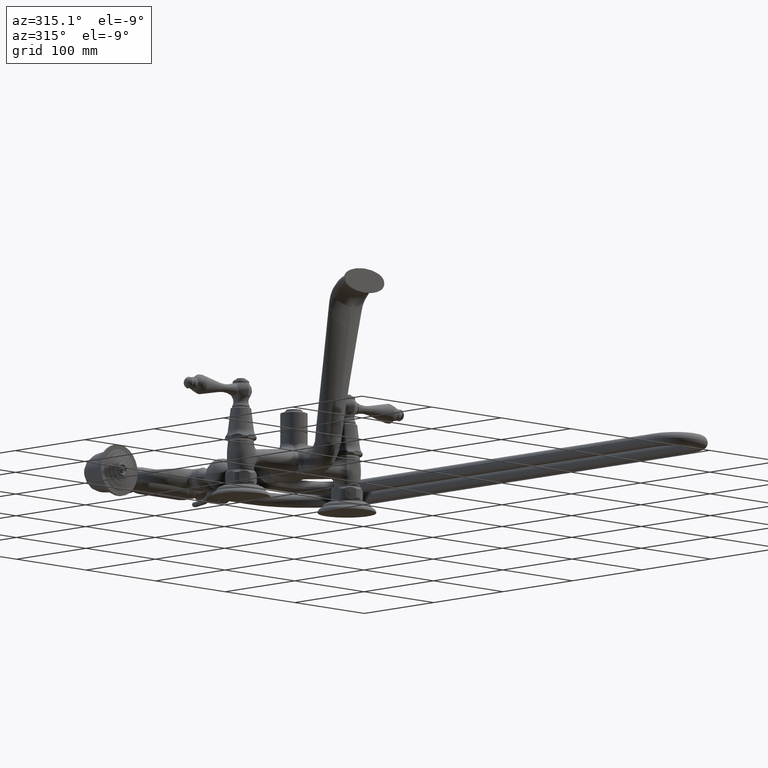
[diagram: clean part render]
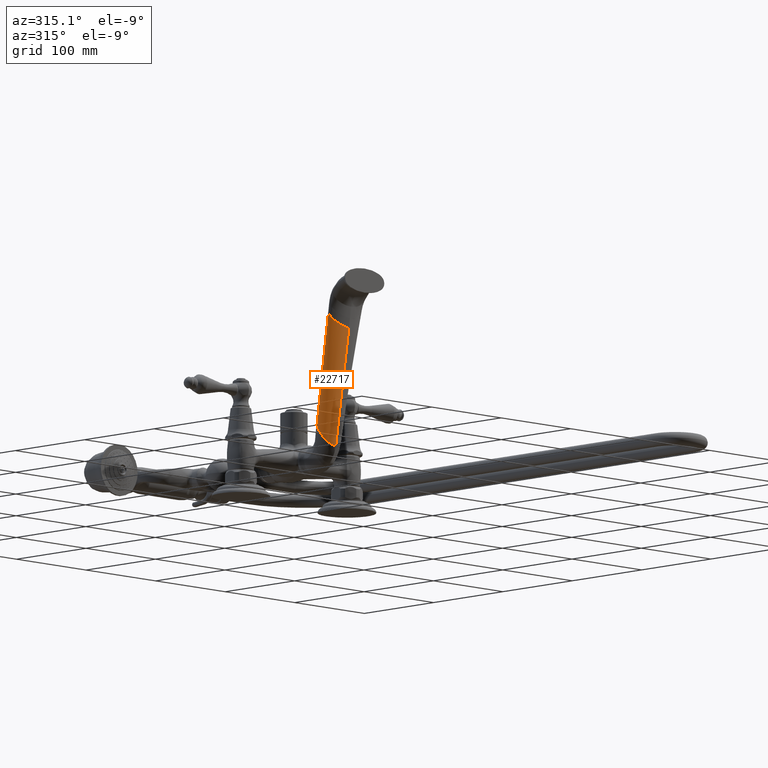
[diagram: same view with one face highlighted and labeled with its STEP entity id]
A machine part, auxiliary view. The second image highlights one B-rep face of the part: STEP entity #22717.
In plain terms, the highlighted face is a freeform B-spline surface patch.
Its self-contained STEP definition (entity closure, byte-faithful):
#962=DIRECTION('',(-5.522472671749E-2,-1.978964518435E-1,9.786660430948E-1));
#963=VECTOR('',#962,4.564261573249E0);
#964=CARTESIAN_POINT('',(-6.424156534630E-1,-1.957098222542E0,
1.283315377825E0));
#965=LINE('',#964,#963);
#988=DIRECTION('',(0.E0,-1.564344650402E-1,9.876883405951E-1));
#989=VECTOR('',#988,4.740099170455E0);
#990=CARTESIAN_POINT('',(0.E0,-2.375949008421E0,4.844569186997E-1));
#991=LINE('',#990,#989);
#1006=CARTESIAN_POINT('',(-8.944757515128E-1,-2.860349393174E0,
5.750203191366E0));
#1007=CARTESIAN_POINT('',(-8.945821306863E-1,-2.863645216828E0,
5.735630898210E0));
#1008=CARTESIAN_POINT('',(-8.913417888232E-1,-2.870346561974E0,
5.709825471475E0));
#1009=CARTESIAN_POINT('',(-8.780906276309E-1,-2.884132433152E0,
5.664548542467E0));
#1010=CARTESIAN_POINT('',(-8.532922237936E-1,-2.901978966669E0,
5.615404314537E0));
#1011=CARTESIAN_POINT('',(-8.160320824948E-1,-2.924043855382E0,
5.562796524462E0));
#1012=CARTESIAN_POINT('',(-7.588643653375E-1,-2.953884221288E0,
5.498778311683E0));
#1013=CARTESIAN_POINT('',(-6.762435119024E-1,-2.991138986019E0,
5.427651105434E0));
#1014=CARTESIAN_POINT('',(-5.634577488545E-1,-3.033102293243E0,
5.353425939330E0));
#1015=CARTESIAN_POINT('',(-4.387912793367E-1,-3.069653887797E0,
5.289680000255E0));
#1016=CARTESIAN_POINT('',(-2.581648552657E-1,-3.107614660693E0,
5.218703611068E0));
#1017=CARTESIAN_POINT('',(-1.074435132833E-1,-3.119959764720E0,
5.181955958217E0));
#1018=CARTESIAN_POINT('',(0.E0,-3.117463886389E0,5.166197602623E0));
#1020=CARTESIAN_POINT('',(-6.424156534630E-1,-1.957098222542E0,
1.283315377825E0));
#1021=CARTESIAN_POINT('',(-6.430098444355E-1,-1.961154842044E0,
1.270118292902E0));
#1022=CARTESIAN_POINT('',(-6.429000615532E-1,-1.969579071551E0,
1.244560258558E0));
#1023=CARTESIAN_POINT('',(-6.396346320449E-1,-1.987562052614E0,
1.194752730223E0));
#1024=CARTESIAN_POINT('',(-6.311675998175E-1,-2.011962807847E0,
1.133828822375E0));
#1025=CARTESIAN_POINT('',(-6.155780906234E-1,-2.043662320578E0,
1.061934378520E0));
#1026=CARTESIAN_POINT('',(-5.881109276105E-1,-2.088277626431E0,
9.680228554873E-1));
#1027=CARTESIAN_POINT('',(-5.417278241923E-1,-2.146810075908E0,
8.554693563214E-1));
#1028=CARTESIAN_POINT('',(-4.678587633568E-1,-2.216217204381E0,
7.330972430499E-1));
#1029=CARTESIAN_POINT('',(-3.760910306351E-1,-2.279539403601E0,
6.291304916958E-1));
#1030=CARTESIAN_POINT('',(-2.311118116351E-1,-2.348851605751E0,
5.218379066855E-1));
#1031=CARTESIAN_POINT('',(-9.812080477089E-2,-2.375949008421E0,
4.844569186997E-1));
#1032=CARTESIAN_POINT('',(0.E0,-2.375949008421E0,4.844569186997E-1));
#1040=CARTESIAN_POINT('',(0.E0,-2.375949008421E0,4.844569186997E-1));
#18687=CARTESIAN_POINT('',(-6.424156534630E-1,-1.957098222542E0,
1.283315377825E0));
#18688=VERTEX_POINT('',#18687);
#18689=CARTESIAN_POINT('',(-8.944757515128E-1,-2.860349393174E0,
5.750203191366E0));
#18690=VERTEX_POINT('',#18689);
#18708=VERTEX_POINT('',#1040);
#18709=CARTESIAN_POINT('',(0.E0,-3.117463886389E0,5.166197602623E0));
#18710=VERTEX_POINT('',#18709);
#22617=CARTESIAN_POINT('',(-6.424156534630E-1,-1.957098222542E0,
1.283315377825E0));
#22618=CARTESIAN_POINT('',(-6.430098444355E-1,-1.961154842044E0,
1.270118292902E0));
#22619=CARTESIAN_POINT('',(-6.429000615532E-1,-1.969579071551E0,
1.244560258558E0));
#22620=CARTESIAN_POINT('',(-6.396346320449E-1,-1.987562052614E0,
1.194752730223E0));
#22621=CARTESIAN_POINT('',(-6.311675998175E-1,-2.011962807847E0,
1.133828822375E0));
#22622=CARTESIAN_POINT('',(-6.155780906234E-1,-2.043662320578E0,
1.061934378520E0));
#22623=CARTESIAN_POINT('',(-5.881109276105E-1,-2.088277626431E0,
9.680228554873E-1));
#22624=CARTESIAN_POINT('',(-5.417278241923E-1,-2.146810075908E0,
8.554693563214E-1));
#22625=CARTESIAN_POINT('',(-4.678587633568E-1,-2.216217204381E0,
7.330972430499E-1));
#22626=CARTESIAN_POINT('',(-3.760910306351E-1,-2.279539403601E0,
6.291304916958E-1));
#22627=CARTESIAN_POINT('',(-2.311118116351E-1,-2.348851605751E0,
5.218379066855E-1));
#22628=CARTESIAN_POINT('',(-9.812080477089E-2,-2.375949008421E0,
4.844569186997E-1));
#22629=CARTESIAN_POINT('',(0.E0,-2.375949008421E0,4.844569186997E-1));
#22630=CARTESIAN_POINT('',(-6.634206616338E-1,-2.032369153428E0,
1.655556028953E0));
#22631=CARTESIAN_POINT('',(-6.639652727362E-1,-2.036395318852E0,
1.642450761986E0));
#22632=CARTESIAN_POINT('',(-6.635747837977E-1,-2.044745643706E0,
1.617309000500E0));
#22633=CARTESIAN_POINT('',(-6.594306316390E-1,-2.062531126391E0,
1.568835149030E0));
#22634=CARTESIAN_POINT('',(-6.495332188750E-1,-2.086596148371E0,
1.510216462045E0));
#22635=CARTESIAN_POINT('',(-6.320422526832E-1,-2.117764386275E0,
1.441639868196E0));
#22636=CARTESIAN_POINT('',(-6.019638594333E-1,-2.161518507826E0,
1.352552543593E0));
#22637=CARTESIAN_POINT('',(-5.523885069325E-1,-2.218722397240E0,
1.246257707897E0));
#22638=CARTESIAN_POINT('',(-4.751114088795E-1,-2.286242178343E0,
1.130424634536E0));
#22639=CARTESIAN_POINT('',(-3.805245568667E-1,-2.347494207098E0,
1.030830289387E0));
#22640=CARTESIAN_POINT('',(-2.326485221479E-1,-2.413949420771E0,
9.250299199996E-1));
#22641=CARTESIAN_POINT('',(-9.850288393030E-2,-2.438960604044E0,
8.822964760067E-1));
#22642=CARTESIAN_POINT('',(0.E0,-2.437741914918E0,8.746019756933E-1));
#22643=CARTESIAN_POINT('',(-7.054306779754E-1,-2.182911015200E0,
2.400037331210E0));
#22644=CARTESIAN_POINT('',(-7.058339191518E-1,-2.186851148167E0,
2.386955429019E0));
#22645=CARTESIAN_POINT('',(-7.047928393659E-1,-2.194999923364E0,
2.362303830260E0));
#22646=CARTESIAN_POINT('',(-6.986966246708E-1,-2.212270859853E0,
2.315737150297E0));
#22647=CARTESIAN_POINT('',(-6.856698928917E-1,-2.235495908871E0,
2.260659671717E0));
#22648=CARTESIAN_POINT('',(-6.640299270639E-1,-2.265380267465E0,
2.197316968765E0));
#22649=CARTESIAN_POINT('',(-6.282580605058E-1,-2.307106604381E0,
2.115946229693E0));
#22650=CARTESIAN_POINT('',(-5.717331141457E-1,-2.361280746561E0,
2.019815532677E0));
#22651=CARTESIAN_POINT('',(-4.871328363819E-1,-2.424684425404E0,
1.914908672609E0));
#22652=CARTESIAN_POINT('',(-3.867047870675E-1,-2.481651567041E0,
1.823152670678E0));
#22653=CARTESIAN_POINT('',(-2.333475540258E-1,-2.542584045707E0,
1.721553220655E0));
#22654=CARTESIAN_POINT('',(-9.798260876895E-2,-2.564134862603E0,
1.672615640582E0));
#22655=CARTESIAN_POINT('',(0.E0,-2.561327727913E0,1.654892089681E0));
#22656=CARTESIAN_POINT('',(-7.684457024879E-1,-2.408723807858E0,
3.516759284596E0));
#22657=CARTESIAN_POINT('',(-7.687015180973E-1,-2.412479738183E0,
3.503364376161E0));
#22658=CARTESIAN_POINT('',(-7.668232252926E-1,-2.420209024146E0,
3.478708600483E0));
#22659=CARTESIAN_POINT('',(-7.581088765018E-1,-2.436450248508E0,
3.433374979287E0));
#22660=CARTESIAN_POINT('',(-7.408273057924E-1,-2.458056035744E0,
3.381341334932E0));
#22661=CARTESIAN_POINT('',(-7.135432405849E-1,-2.485547498384E0,
3.322900927800E0));
#22662=CARTESIAN_POINT('',(-6.700332457587E-1,-2.523592415315E0,
3.249066260306E0));
#22663=CARTESIAN_POINT('',(-6.040662353037E-1,-2.572448391876E0,
3.163297856525E0));
#22664=CARTESIAN_POINT('',(-5.093853683959E-1,-2.628976949197E0,
3.070354184099E0));
#22665=CARTESIAN_POINT('',(-4.005829210093E-1,-2.679228548775E0,
2.988535345789E0));
#22666=CARTESIAN_POINT('',(-2.385084830250E-1,-2.732290280302E0,
2.895846135548E0));
#22667=CARTESIAN_POINT('',(-9.944133500739E-2,-2.750136112764E0,
2.846981315519E0));
#22668=CARTESIAN_POINT('',(0.E0,-2.746706447405E0,2.825327260661E0));
#22669=CARTESIAN_POINT('',(-8.314607270004E-1,-2.634536600516E0,
4.633481237981E0));
#22670=CARTESIAN_POINT('',(-8.316323228340E-1,-2.638072422638E0,
4.619551902092E0));
#22671=CARTESIAN_POINT('',(-8.290522474727E-1,-2.645307048513E0,
4.594427234852E0));
#22672=CARTESIAN_POINT('',(-8.180218375639E-1,-2.660356881539E0,
4.549323145906E0));
#22673=CARTESIAN_POINT('',(-7.969124227480E-1,-2.680123990371E0,
4.498965104643E0));
#22674=CARTESIAN_POINT('',(-7.645465169183E-1,-2.704944157549E0,
4.443683349043E0));
#22675=CARTESIAN_POINT('',(-7.140756510681E-1,-2.738933133895E0,
4.375031337977E0));
#22676=CARTESIAN_POINT('',(-6.396169065270E-1,-2.782028088281E0,
4.296830790427E0));
#22677=CARTESIAN_POINT('',(-5.357284136623E-1,-2.831291435882E0,
4.213375511138E0));
#22678=CARTESIAN_POINT('',(-4.189236522167E-1,-2.874679613828E0,
4.140540370657E0));
#22679=CARTESIAN_POINT('',(-2.476490206091E-1,-2.920130862230E0,
4.058375615822E0));
#22680=CARTESIAN_POINT('',(-1.030657705094E-1,-2.935132828077E0,
4.015004607037E0));
#22681=CARTESIAN_POINT('',(0.E0,-2.932085166897E0,3.995762431642E0));
#22682=CARTESIAN_POINT('',(-8.734707433420E-1,-2.785078462288E0,
5.377962540238E0));
#22683=CARTESIAN_POINT('',(-8.735996221514E-1,-2.788454289214E0,
5.363602187793E0));
#22684=CARTESIAN_POINT('',(-8.705808898213E-1,-2.795332888986E0,
5.338015984301E0));
#22685=CARTESIAN_POINT('',(-8.580729997285E-1,-2.809537209166E0,
5.292770674326E0));
#22686=CARTESIAN_POINT('',(-8.345079630059E-1,-2.828017217390E0,
5.243171643493E0));
#22687=CARTESIAN_POINT('',(-7.988834585054E-1,-2.850988621841E0,
5.189590913610E0));
#22688=CARTESIAN_POINT('',(-7.439532249026E-1,-2.882192382923E0,
5.123900036466E0));
#22689=CARTESIAN_POINT('',(-6.640584983676E-1,-2.921365679629E0,
5.050236264475E0));
#22690=CARTESIAN_POINT('',(-5.542424380361E-1,-2.965731562486E0,
4.972745517620E0));
#22691=CARTESIAN_POINT('',(-4.321970796710E-1,-3.004543546396E0,
4.905862227037E0));
#22692=CARTESIAN_POINT('',(-2.546829812777E-1,-3.045005225340E0,
4.831195360743E0));
#22693=CARTESIAN_POINT('',(-1.059963353969E-1,-3.058285158860E0,
4.792557822048E0));
#22694=CARTESIAN_POINT('',(0.E0,-3.055670979892E0,4.776052545629E0));
#22695=CARTESIAN_POINT('',(-8.944757515128E-1,-2.860349393174E0,
5.750203191366E0));
#22696=CARTESIAN_POINT('',(-8.945821306863E-1,-2.863645216828E0,
5.735630898210E0));
#22697=CARTESIAN_POINT('',(-8.913417888232E-1,-2.870346561974E0,
5.709825471475E0));
#22698=CARTESIAN_POINT('',(-8.780906276309E-1,-2.884132433152E0,
5.664548542467E0));
#22699=CARTESIAN_POINT('',(-8.532922237936E-1,-2.901978966669E0,
5.615404314537E0));
#22700=CARTESIAN_POINT('',(-8.160320824948E-1,-2.924043855382E0,
5.562796524462E0));
#22701=CARTESIAN_POINT('',(-7.588643653375E-1,-2.953884221288E0,
5.498778311683E0));
#22702=CARTESIAN_POINT('',(-6.762435119024E-1,-2.991138986019E0,
5.427651105434E0));
#22703=CARTESIAN_POINT('',(-5.634577488545E-1,-3.033102293243E0,
5.353425939330E0));
#22704=CARTESIAN_POINT('',(-4.387912793367E-1,-3.069653887797E0,
5.289680000255E0));
#22705=CARTESIAN_POINT('',(-2.581648552657E-1,-3.107614660693E0,
5.218703611068E0));
#22706=CARTESIAN_POINT('',(-1.074435132833E-1,-3.119959764720E0,
5.181955958217E0));
#22707=CARTESIAN_POINT('',(0.E0,-3.117463886389E0,5.166197602623E0));
#22708=B_SPLINE_SURFACE_WITH_KNOTS('',3,3,((#22617,#22618,#22619,#22620,#22621,
#22622,#22623,#22624,#22625,#22626,#22627,#22628,#22629),(#22630,#22631,#22632,
#22633,#22634,#22635,#22636,#22637,#22638,#22639,#22640,#22641,#22642),(#22643,
#22644,#22645,#22646,#22647,#22648,#22649,#22650,#22651,#22652,#22653,#22654,
#22655),(#22656,#22657,#22658,#22659,#22660,#22661,#22662,#22663,#22664,#22665,
#22666,#22667,#22668),(#22669,#22670,#22671,#22672,#22673,#22674,#22675,#22676,
#22677,#22678,#22679,#22680,#22681),(#22682,#22683,#22684,#22685,#22686,#22687,
#22688,#22689,#22690,#22691,#22692,#22693,#22694),(#22695,#22696,#22697,#22698,
#22699,#22700,#22701,#22702,#22703,#22704,#22705,#22706,#22707)),.UNSPECIFIED.,
.F.,.F.,.F.,(4,1,1,1,4),(4,1,1,1,1,1,1,1,1,1,4),(2.461887790942E-1,
3.839874123147E-1,5.217860455353E-1,6.595846787559E-1,7.973833119764E-1),(5.E-1,
5.15625E-1,5.3125E-1,5.625E-1,5.9375E-1,6.25E-1,6.875E-1,7.5E-1,8.125E-1,
8.75E-1,1.E0),.UNSPECIFIED.);
#22709=ORIENTED_EDGE('',*,*,#22607,.F.);
#22711=ORIENTED_EDGE('',*,*,#22710,.F.);
#22712=ORIENTED_EDGE('',*,*,#22408,.T.);
#22714=ORIENTED_EDGE('',*,*,#22713,.T.);
#22715=EDGE_LOOP('',(#22709,#22711,#22712,#22714));
#22716=FACE_OUTER_BOUND('',#22715,.F.);
#22717=ADVANCED_FACE('',(#22716),#22708,.F.);
#1019=B_SPLINE_CURVE_WITH_KNOTS('',3,(#1006,#1007,#1008,#1009,#1010,#1011,#1012,
#1013,#1014,#1015,#1016,#1017,#1018),.UNSPECIFIED.,.F.,.F.,(4,1,1,1,1,1,1,1,1,1,
4),(0.E0,3.125E-2,6.25E-2,1.25E-1,1.875E-1,2.5E-1,3.75E-1,5.E-1,6.25E-1,7.5E-1,
1.E0),.UNSPECIFIED.);
#1033=B_SPLINE_CURVE_WITH_KNOTS('',3,(#1020,#1021,#1022,#1023,#1024,#1025,#1026,
#1027,#1028,#1029,#1030,#1031,#1032),.UNSPECIFIED.,.F.,.F.,(4,1,1,1,1,1,1,1,1,1,
4),(0.E0,3.125E-2,6.25E-2,1.25E-1,1.875E-1,2.5E-1,3.75E-1,5.E-1,6.25E-1,7.5E-1,
1.E0),.UNSPECIFIED.);
#22408=EDGE_CURVE('',#18688,#18690,#965,.T.);
#22607=EDGE_CURVE('',#18708,#18710,#991,.T.);
#22710=EDGE_CURVE('',#18688,#18708,#1033,.T.);
#22713=EDGE_CURVE('',#18690,#18710,#1019,.T.);